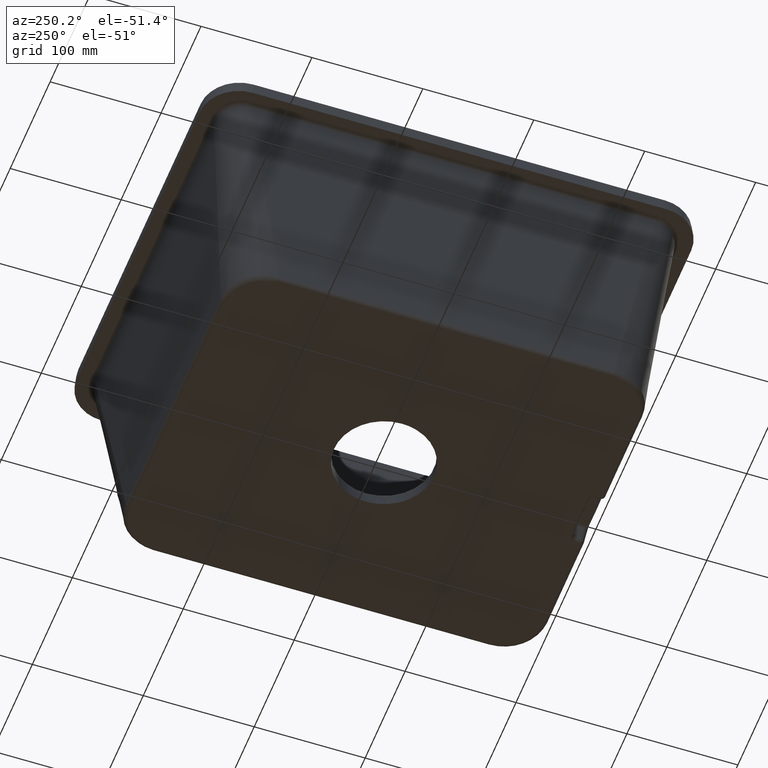
[diagram: clean part render]
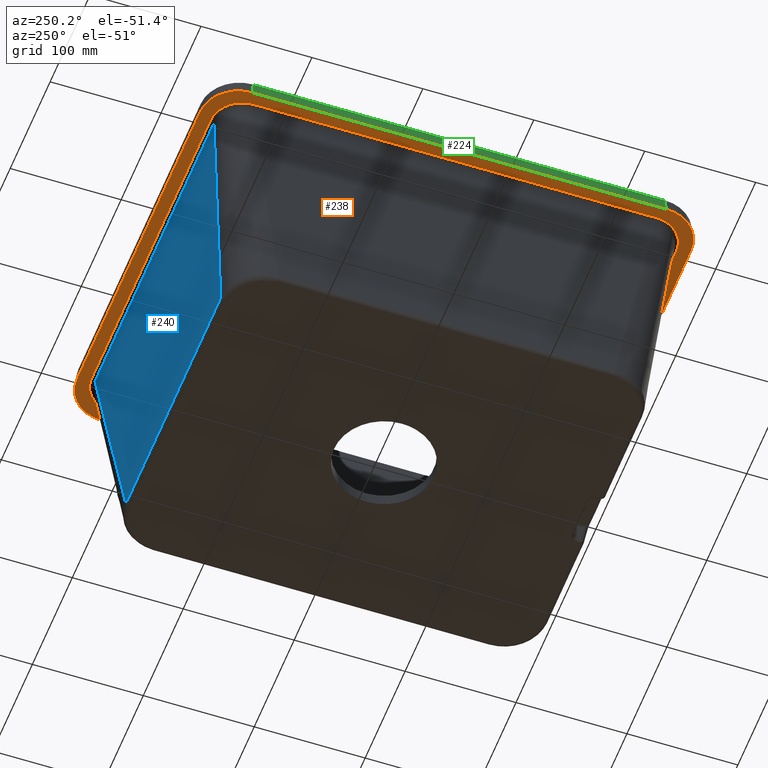
[diagram: same view with three faces highlighted in distinct colors, each labeled with its STEP entity id]
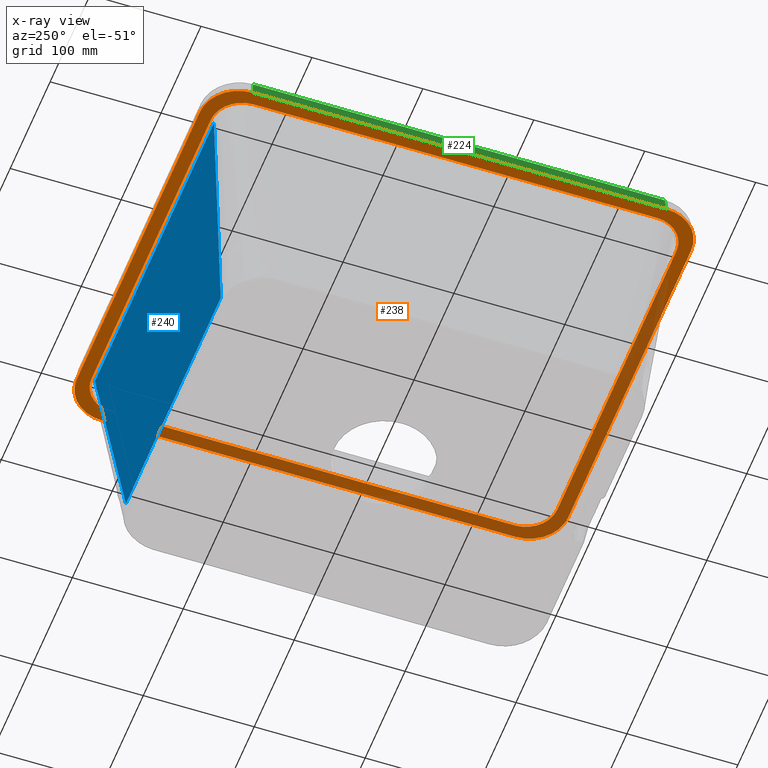
[diagram: x-ray of the same camera — body ghosted, the three highlighted faces saturated]
A machine part, auxiliary view with three faces highlighted in distinct colors.
The next image is the same camera in x-ray (body ghosted, the three faces saturated) — at least one of them is partly hidden behind the body in this view.
Their STEP definitions:

[orange] entity #238 — the highlighted planar face has unit normal (0, 0, -1).
#46=ELLIPSE('',#1387,35.2668818057622,35.);
#47=ELLIPSE('',#1390,35.2668818057622,35.);
#48=ELLIPSE('',#1393,35.2668818057622,35.);
#49=ELLIPSE('',#1396,35.2668818057622,35.);
#61=PLANE('',#1407);
#73=LINE('',#3548,#97);
#75=LINE('',#3629,#99);
#79=LINE('',#3639,#103);
#82=LINE('',#3647,#106);
#85=LINE('',#3655,#109);
#86=LINE('',#3672,#110);
#87=LINE('',#3747,#111);
#88=LINE('',#4011,#112);
#97=VECTOR('',#1508,1.);
#99=VECTOR('',#1514,1.);
#103=VECTOR('',#1524,1.);
#106=VECTOR('',#1533,1.);
#109=VECTOR('',#1542,1.);
#110=VECTOR('',#1551,1.);
#111=VECTOR('',#1556,1.);
#112=VECTOR('',#1569,1.);
#170=FACE_BOUND('',#453,.T.);
#171=FACE_BOUND('',#454,.T.);
#238=ADVANCED_FACE('',(#170,#171),#61,.T.);
#453=EDGE_LOOP('',(#806,#807,#808,#809,#810,#811,#812,#813));
#454=EDGE_LOOP('',(#814,#815,#816,#817,#818,#819,#820,#821));
#806=ORIENTED_EDGE('',*,*,#1183,.T.);
#807=ORIENTED_EDGE('',*,*,#1203,.F.);
#808=ORIENTED_EDGE('',*,*,#1204,.F.);
#809=ORIENTED_EDGE('',*,*,#1205,.F.);
#810=ORIENTED_EDGE('',*,*,#1188,.T.);
#811=ORIENTED_EDGE('',*,*,#1157,.T.);
#812=ORIENTED_EDGE('',*,*,#1161,.T.);
#813=ORIENTED_EDGE('',*,*,#1164,.T.);
#814=ORIENTED_EDGE('',*,*,#1166,.T.);
#815=ORIENTED_EDGE('',*,*,#1169,.T.);
#816=ORIENTED_EDGE('',*,*,#1171,.T.);
#817=ORIENTED_EDGE('',*,*,#1173,.T.);
#818=ORIENTED_EDGE('',*,*,#1175,.T.);
#819=ORIENTED_EDGE('',*,*,#1177,.T.);
#820=ORIENTED_EDGE('',*,*,#1179,.T.);
#821=ORIENTED_EDGE('',*,*,#1180,.T.);
#996=VERTEX_POINT('',#3468);
#997=VERTEX_POINT('',#3479);
#999=VERTEX_POINT('',#3547);
#1001=VERTEX_POINT('',#3574);
#1002=VERTEX_POINT('',#3628);
#1003=VERTEX_POINT('',#3630);
#1004=VERTEX_POINT('',#3634);
#1005=VERTEX_POINT('',#3638);
#1006=VERTEX_POINT('',#3642);
#1007=VERTEX_POINT('',#3646);
#1008=VERTEX_POINT('',#3650);
#1009=VERTEX_POINT('',#3654);
#1011=VERTEX_POINT('',#3671);
#1014=VERTEX_POINT('',#3748);
#1020=VERTEX_POINT('',#4010);
#1021=VERTEX_POINT('',#4012);
#1157=EDGE_CURVE('',#997,#996,#1301,.T.);
#1161=EDGE_CURVE('',#996,#999,#73,.T.);
#1164=EDGE_CURVE('',#999,#1001,#1304,.T.);
#1166=EDGE_CURVE('',#1003,#1002,#75,.T.);
#1169=EDGE_CURVE('',#1002,#1004,#46,.T.);
#1171=EDGE_CURVE('',#1004,#1005,#79,.T.);
#1173=EDGE_CURVE('',#1005,#1006,#47,.T.);
#1175=EDGE_CURVE('',#1006,#1007,#82,.T.);
#1177=EDGE_CURVE('',#1007,#1008,#48,.T.);
#1179=EDGE_CURVE('',#1008,#1009,#85,.T.);
#1180=EDGE_CURVE('',#1009,#1003,#49,.T.);
#1183=EDGE_CURVE('',#1001,#1011,#86,.T.);
#1188=EDGE_CURVE('',#1014,#997,#87,.T.);
#1203=EDGE_CURVE('',#1020,#1011,#1318,.T.);
#1204=EDGE_CURVE('',#1021,#1020,#88,.T.);
#1205=EDGE_CURVE('',#1014,#1021,#1319,.T.);
#1301=B_SPLINE_CURVE_WITH_KNOTS('',3,(#3469,#3470,#3471,#3472,#3473,#3474,
#3475,#3476,#3477,#3478),.UNSPECIFIED.,.F.,.F.,(4,2,2,2,4),(0.,0.25,0.5,
0.75,1.),.UNSPECIFIED.);
#1304=B_SPLINE_CURVE_WITH_KNOTS('',3,(#3575,#3576,#3577,#3578,#3579,#3580,
#3581,#3582,#3583,#3584),.UNSPECIFIED.,.F.,.F.,(4,2,2,2,4),(0.,0.25,0.5,
0.75,1.),.UNSPECIFIED.);
#1318=B_SPLINE_CURVE_WITH_KNOTS('',3,(#4000,#4001,#4002,#4003,#4004,#4005,
#4006,#4007,#4008,#4009),.UNSPECIFIED.,.F.,.F.,(4,2,2,2,4),(0.,0.25,0.5,
0.75,1.),.UNSPECIFIED.);
#1319=B_SPLINE_CURVE_WITH_KNOTS('',3,(#4013,#4014,#4015,#4016,#4017,#4018,
#4019,#4020,#4021,#4022),.UNSPECIFIED.,.F.,.F.,(4,2,2,2,4),(0.,0.25,0.5,
0.75,1.),.UNSPECIFIED.);
#1387=AXIS2_PLACEMENT_3D('',#3635,#1519,#1520);
#1390=AXIS2_PLACEMENT_3D('',#3643,#1528,#1529);
#1393=AXIS2_PLACEMENT_3D('',#3651,#1537,#1538);
#1396=AXIS2_PLACEMENT_3D('',#3657,#1545,#1546);
#1407=AXIS2_PLACEMENT_3D('',#4023,#1570,#1571);
#1508=DIRECTION('',(0.,1.,0.));
#1514=DIRECTION('',(1.,0.,0.));
#1519=DIRECTION('',(0.,0.,-1.));
#1520=DIRECTION('',(0.707106781186548,0.707106781186548,0.));
#1524=DIRECTION('',(2.52323414687536E-16,-1.,0.));
#1528=DIRECTION('',(0.,0.,-1.));
#1529=DIRECTION('',(0.707106781186548,-0.707106781186548,0.));
#1533=DIRECTION('',(-1.,0.,0.));
#1537=DIRECTION('',(0.,0.,-1.));
#1538=DIRECTION('',(-0.707106781186548,-0.707106781186548,0.));
#1542=DIRECTION('',(-1.26161707343768E-16,1.,0.));
#1545=DIRECTION('',(0.,0.,-1.));
#1546=DIRECTION('',(-0.707106781186548,0.707106781186548,0.));
#1551=DIRECTION('',(-1.,0.,0.));
#1556=DIRECTION('',(1.,0.,0.));
#1569=DIRECTION('',(0.,1.,0.));
#1570=DIRECTION('',(0.,0.,-1.));
#1571=DIRECTION('',(0.70263714545414,-0.711548341174413,0.));
#3468=CARTESIAN_POINT('',(177.465209313615,-390.485497149926,-13.));
#3469=CARTESIAN_POINT('',(148.985497149927,-418.965209313615,-13.));
#3470=CARTESIAN_POINT('',(152.745044348279,-418.965209313615,-13.));
#3471=CARTESIAN_POINT('',(156.452400838476,-418.236538982125,-13.));
#3472=CARTESIAN_POINT('',(163.349542580203,-415.407351915981,-13.));
#3473=CARTESIAN_POINT('',(166.5303932164,-413.290199796579,-13.));
#3474=CARTESIAN_POINT('',(171.775677061504,-408.049550636911,-13.));
#3475=CARTESIAN_POINT('',(173.901385471948,-404.85449806492,-13.));
#3476=CARTESIAN_POINT('',(176.722186446106,-397.996911161427,-13.));
#3477=CARTESIAN_POINT('',(177.465209313615,-394.241409307362,-13.));
#3478=CARTESIAN_POINT('',(177.465209313615,-390.485497149926,-13.));
#3479=CARTESIAN_POINT('',(148.985497149927,-418.965209313615,-13.));
#3547=CARTESIAN_POINT('',(177.465209313615,-27.5145028274378,-13.));
#3548=CARTESIAN_POINT('',(177.465209313615,-208.999999988682,-13.));
#3574=CARTESIAN_POINT('',(148.985497172562,0.965209313614717,-13.));
#3575=CARTESIAN_POINT('',(177.465209313615,-27.5145028274378,-13.));
#3576=CARTESIAN_POINT('',(177.465209313615,-23.7549556345295,-13.));
#3577=CARTESIAN_POINT('',(176.736538982255,-20.0475991440989,-13.));
#3578=CARTESIAN_POINT('',(173.907351918719,-13.150457409668,-13.));
#3579=CARTESIAN_POINT('',(171.790199798897,-9.96960677354401,-13.));
#3580=CARTESIAN_POINT('',(166.549550646921,-4.72432293613602,-13.));
#3581=CARTESIAN_POINT('',(163.354498080526,-2.59861452714529,-13.));
#3582=CARTESIAN_POINT('',(156.496911173303,0.222186448095451,-13.));
#3583=CARTESIAN_POINT('',(152.741409322777,0.965209313614666,-13.));
#3584=CARTESIAN_POINT('',(148.985497172562,0.965209313614691,-13.));
#3628=CARTESIAN_POINT('',(154.120492846729,12.4873072799407,-13.));
#3629=CARTESIAN_POINT('',(187.5,12.4873072799407,-13.));
#3630=CARTESIAN_POINT('',(-154.120492846729,12.4873072799407,-13.));
#3634=CARTESIAN_POINT('',(188.987307279941,-22.3795071532704,-13.));
#3635=CARTESIAN_POINT('',(153.853612965923,-22.6463870340765,-13.));
#3638=CARTESIAN_POINT('',(188.987307279941,-395.620492846729,-13.));
#3639=CARTESIAN_POINT('',(188.987307279941,-429.,-13.));
#3642=CARTESIAN_POINT('',(154.120492846729,-430.487307279941,-13.));
#3643=CARTESIAN_POINT('',(153.853612965923,-395.353612965923,-13.));
#3646=CARTESIAN_POINT('',(-154.120492846729,-430.487307279941,-13.));
#3647=CARTESIAN_POINT('',(-187.5,-430.487307279941,-13.));
#3650=CARTESIAN_POINT('',(-188.987307279941,-395.62049284673,-13.));
#3651=CARTESIAN_POINT('',(-153.853612965923,-395.353612965923,-13.));
#3654=CARTESIAN_POINT('',(-188.987307279941,-22.3795071532704,-13.));
#3655=CARTESIAN_POINT('',(-188.987307279941,11.,-13.));
#3657=CARTESIAN_POINT('',(-153.853612965923,-22.6463870340765,-13.));
#3671=CARTESIAN_POINT('',(-148.985497149927,0.965209313614745,-13.));
#3672=CARTESIAN_POINT('',(1.13178433638894E-8,0.965209313614713,-13.));
#3747=CARTESIAN_POINT('',(-1.13177436172895E-8,-418.965209313615,-13.));
#3748=CARTESIAN_POINT('',(-148.985497172562,-418.965209313615,-13.));
#4000=CARTESIAN_POINT('',(-177.465209313615,-27.5145028500735,-13.));
#4001=CARTESIAN_POINT('',(-177.465209313615,-23.7503469468339,-13.));
#4002=CARTESIAN_POINT('',(-176.723915255764,-20.0074799422028,-13.));
#4003=CARTESIAN_POINT('',(-173.89965666229,-13.1411108314498,-13.));
#4004=CARTESIAN_POINT('',(-171.783360371772,-9.95822725562605,-13.));
#4005=CARTESIAN_POINT('',(-166.522709906132,-4.70202231088439,-13.));
#4006=CARTESIAN_POINT('',(-163.357086318781,-2.59581833253913,-13.));
#4007=CARTESIAN_POINT('',(-156.444857099898,0.239709230644452,-13.));
#4008=CARTESIAN_POINT('',(-152.749341713259,0.965209313614782,-13.));
#4009=CARTESIAN_POINT('',(-148.985497149927,0.965209313614782,-13.));
#4010=CARTESIAN_POINT('',(-177.465209313615,-27.5145028500735,-13.));
#4011=CARTESIAN_POINT('',(-177.465209313615,-209.000000011318,-13.));
#4012=CARTESIAN_POINT('',(-177.465209313615,-390.485497172562,-13.));
#4013=CARTESIAN_POINT('',(-148.985497172562,-418.965209313615,-13.));
#4014=CARTESIAN_POINT('',(-152.749653072774,-418.965209313615,-13.));
#4015=CARTESIAN_POINT('',(-156.492520074367,-418.223915256196,-13.));
#4016=CARTESIAN_POINT('',(-163.358889179462,-415.399656664754,-13.));
#4017=CARTESIAN_POINT('',(-166.541772752662,-413.283360375851,-13.));
#4018=CARTESIAN_POINT('',(-171.797977693157,-408.022709914469,-13.));
#4019=CARTESIAN_POINT('',(-173.904181669911,-404.857086329714,-13.));
#4020=CARTESIAN_POINT('',(-176.739709231063,-397.944857116519,-13.));
#4021=CARTESIAN_POINT('',(-177.465209313615,-394.24934173287,-13.));
#4022=CARTESIAN_POINT('',(-177.465209313615,-390.485497172562,-13.));
#4023=CARTESIAN_POINT('',(2.4786766047491,220.110059695157,-13.));

[blue] entity #240 — the highlighted planar face has unit normal (0, 0.9962, -0.0872).
#62=PLANE('',#1409);
#240=ADVANCED_FACE('',(#364),#62,.T.);
#364=FACE_OUTER_BOUND('',#456,.T.);
#456=EDGE_LOOP('',(#826,#827,#828,#829,#830,#831));
#826=ORIENTED_EDGE('',*,*,#1208,.F.);
#827=ORIENTED_EDGE('',*,*,#1181,.T.);
#828=ORIENTED_EDGE('',*,*,#1184,.T.);
#829=ORIENTED_EDGE('',*,*,#1185,.T.);
#830=ORIENTED_EDGE('',*,*,#1187,.T.);
#831=ORIENTED_EDGE('',*,*,#1209,.F.);
#984=VERTEX_POINT('',#3086);
#1000=VERTEX_POINT('',#3572);
#1010=VERTEX_POINT('',#3669);
#1012=VERTEX_POINT('',#3678);
#1013=VERTEX_POINT('',#3724);
#1023=VERTEX_POINT('',#4094);
#1181=EDGE_CURVE('',#1010,#1000,#1305,.T.);
#1184=EDGE_CURVE('',#1000,#1012,#1306,.T.);
#1185=EDGE_CURVE('',#1012,#984,#1307,.T.);
#1187=EDGE_CURVE('',#984,#1013,#1308,.T.);
#1208=EDGE_CURVE('',#1010,#1023,#1321,.T.);
#1209=EDGE_CURVE('',#1023,#1013,#1322,.T.);
#1305=B_SPLINE_CURVE_WITH_KNOTS('',3,(#3659,#3660,#3661,#3662,#3663,#3664,
#3665,#3666,#3667,#3668),.UNSPECIFIED.,.F.,.F.,(4,2,2,2,4),(0.,0.0201361881334875,
0.100680940667438,0.422859950803239,1.),.UNSPECIFIED.);
#1306=B_SPLINE_CURVE_WITH_KNOTS('',3,(#3674,#3675,#3676,#3677),
 .UNSPECIFIED.,.F.,.F.,(4,4),(0.,1.),.UNSPECIFIED.);
#1307=B_SPLINE_CURVE_WITH_KNOTS('',3,(#3679,#3680,#3681,#3682),
 .UNSPECIFIED.,.F.,.F.,(4,4),(0.,1.),.UNSPECIFIED.);
#1308=B_SPLINE_CURVE_WITH_KNOTS('',3,(#3725,#3726,#3727,#3728,#3729,#3730,
#3731,#3732,#3733,#3734),.UNSPECIFIED.,.F.,.F.,(4,2,2,2,4),(0.,0.033674178048837,
0.168370890244659,0.707157739059006,1.),.UNSPECIFIED.);
#1321=B_SPLINE_CURVE_WITH_KNOTS('',3,(#4090,#4091,#4092,#4093),
 .UNSPECIFIED.,.F.,.F.,(4,4),(0.,1.),.UNSPECIFIED.);
#1322=B_SPLINE_CURVE_WITH_KNOTS('',3,(#4095,#4096,#4097,#4098),
 .UNSPECIFIED.,.F.,.F.,(4,4),(0.,1.),.UNSPECIFIED.);
#1409=AXIS2_PLACEMENT_3D('',#4099,#1574,#1575);
#1574=DIRECTION('',(0.,0.996194698091746,-0.0871557427476581));
#1575=DIRECTION('',(0.,-0.0871557427476581,-0.996194698091746));
#3086=CARTESIAN_POINT('',(118.785370703087,-19.0496144140609,-210.349342300872));
#3572=CARTESIAN_POINT('',(148.985497172562,-2.0233747806605,-15.738532771757));
#3659=CARTESIAN_POINT('',(-148.985497149927,-2.02337478066051,-15.738532771757));
#3660=CARTESIAN_POINT('',(-146.985497149927,-2.02337478066051,-15.738532771757));
#3661=CARTESIAN_POINT('',(-144.985497149927,-2.02337478066051,-15.738532771757));
#3662=CARTESIAN_POINT('',(-134.985497149927,-2.02337478066051,-15.738532771757));
#3663=CARTESIAN_POINT('',(-126.985497149927,-2.0233747806605,-15.738532771757));
#3664=CARTESIAN_POINT('',(-86.9854971499266,-2.0233747806605,-15.738532771757));
#3665=CARTESIAN_POINT('',(-54.9854971499266,-2.02337478066051,-15.738532771757));
#3666=CARTESIAN_POINT('',(34.3381676242363,-2.02337478066051,-15.738532771757));
#3667=CARTESIAN_POINT('',(91.6618323983993,-2.0233747806605,-15.738532771757));
#3668=CARTESIAN_POINT('',(148.985497172562,-2.0233747806605,-15.738532771757));
#3669=CARTESIAN_POINT('',(-148.985497149927,-2.02337478066048,-15.738532771757));
#3674=CARTESIAN_POINT('',(148.985497172562,-2.0233747806605,-15.738532771757));
#3675=CARTESIAN_POINT('',(141.255394151248,-6.38145541866054,-65.551622403749));
#3676=CARTESIAN_POINT('',(133.525291129933,-10.7395360566606,-115.364712035741));
#3677=CARTESIAN_POINT('',(125.795188108619,-15.0976166946606,-165.177801667733));
#3678=CARTESIAN_POINT('',(125.795188108619,-15.0976166946606,-165.177801667733));
#3679=CARTESIAN_POINT('',(125.795188108619,-15.0976166946606,-165.177801667733));
#3680=CARTESIAN_POINT('',(123.458582306775,-16.4149492677941,-180.23498187878));
#3681=CARTESIAN_POINT('',(121.121976504931,-17.7322818409275,-195.292162089826));
#3682=CARTESIAN_POINT('',(118.785370703087,-19.0496144140609,-210.349342300872));
#3724=CARTESIAN_POINT('',(-118.785387163963,-19.0496050147404,-210.349234866147));
#3725=CARTESIAN_POINT('',(118.785370703087,-19.0496144140609,-210.349342300872));
#3726=CARTESIAN_POINT('',(116.11870403672,-19.0496109296867,-210.349302474293));
#3727=CARTESIAN_POINT('',(113.452037370333,-19.0496075575296,-210.349263930361));
#3728=CARTESIAN_POINT('',(100.118704038291,-19.0495912582112,-210.349077628299));
#3729=CARTESIAN_POINT('',(89.452037372344,-19.0495800150722,-210.348949118632));
#3730=CARTESIAN_POINT('',(36.1187040404295,-19.049532822267,-210.3484097024));
#3731=CARTESIAN_POINT('',(-6.54796263006954,-19.0495239378777,-210.348308153366));
#3732=CARTESIAN_POINT('',(-72.4048819203574,-19.0495560325608,-210.348674997272));
#3733=CARTESIAN_POINT('',(-95.5951345429952,-19.0495761016447,-210.348904387951));
#3734=CARTESIAN_POINT('',(-118.785387163963,-19.0496050147404,-210.349234866147));
#4090=CARTESIAN_POINT('',(-148.985497149927,-2.02337478066051,-15.738532771757));
#4091=CARTESIAN_POINT('',(-141.255394079998,-6.38145541887472,-65.551622406197));
#4092=CARTESIAN_POINT('',(-133.52529101007,-10.7395360570889,-115.364712040637));
#4093=CARTESIAN_POINT('',(-125.795187940142,-15.0976166953031,-165.177801675077));
#4094=CARTESIAN_POINT('',(-125.795187940142,-15.0976166953031,-165.177801675077));
#4095=CARTESIAN_POINT('',(-125.795187940142,-15.0976166953031,-165.177801675077));
#4096=CARTESIAN_POINT('',(-123.458587681416,-16.4149461351155,-180.2349460721));
#4097=CARTESIAN_POINT('',(-121.121987422689,-17.732275574928,-195.292090469124));
#4098=CARTESIAN_POINT('',(-118.785387163963,-19.0496050147404,-210.349234866147));
#4099=CARTESIAN_POINT('',(-162.5,-0.053274226715562,6.77981960153279));

[green] entity #224 — the highlighted planar face has unit normal (0.9962, 0, -0.0872).
#60=PLANE('',#1395);
#70=LINE('',#3073,#94);
#83=LINE('',#3649,#107);
#84=LINE('',#3653,#108);
#85=LINE('',#3655,#109);
#94=VECTOR('',#1483,1.);
#107=VECTOR('',#1536,1.);
#108=VECTOR('',#1541,1.);
#109=VECTOR('',#1542,1.);
#224=ADVANCED_FACE('',(#349),#60,.F.);
#349=FACE_OUTER_BOUND('',#439,.T.);
#439=EDGE_LOOP('',(#746,#747,#748,#749));
#746=ORIENTED_EDGE('',*,*,#1127,.T.);
#747=ORIENTED_EDGE('',*,*,#1178,.F.);
#748=ORIENTED_EDGE('',*,*,#1179,.F.);
#749=ORIENTED_EDGE('',*,*,#1176,.T.);
#978=VERTEX_POINT('',#3072);
#979=VERTEX_POINT('',#3074);
#1008=VERTEX_POINT('',#3650);
#1009=VERTEX_POINT('',#3654);
#1127=EDGE_CURVE('',#979,#978,#70,.T.);
#1176=EDGE_CURVE('',#1008,#979,#83,.T.);
#1178=EDGE_CURVE('',#1009,#978,#84,.T.);
#1179=EDGE_CURVE('',#1008,#1009,#85,.T.);
#1395=AXIS2_PLACEMENT_3D('',#3656,#1543,#1544);
#1483=DIRECTION('',(-1.26161707343768E-16,1.,0.));
#1536=DIRECTION('',(0.0868265938642475,0.0868265938642475,0.992432509138967));
#1541=DIRECTION('',(0.0868265938642475,-0.0868265938642475,0.992432509138967));
#1542=DIRECTION('',(-1.26161707343768E-16,1.,0.));
#1543=DIRECTION('',(0.996194698091746,1.25681623958064E-16,-0.0871557427476581));
#1544=DIRECTION('',(0.0871557427476581,0.,0.996194698091746));
#3072=CARTESIAN_POINT('',(-187.849954654104,-23.5168597791074,1.0842021724855E-16));
#3073=CARTESIAN_POINT('',(-187.849954654104,11.,0.));
#3074=CARTESIAN_POINT('',(-187.849954654104,-394.483140220893,0.));
#3649=CARTESIAN_POINT('',(-184.445758685167,-391.078944251956,38.9101379737977));
#3650=CARTESIAN_POINT('',(-188.987307279941,-395.62049284673,-13.));
#3653=CARTESIAN_POINT('',(-187.762855942076,-23.6039584911348,0.995542833976173));
#3654=CARTESIAN_POINT('',(-188.987307279941,-22.3795071532704,-13.));
#3655=CARTESIAN_POINT('',(-188.987307279941,11.,-13.));
#3656=CARTESIAN_POINT('',(-187.5,11.,4.));